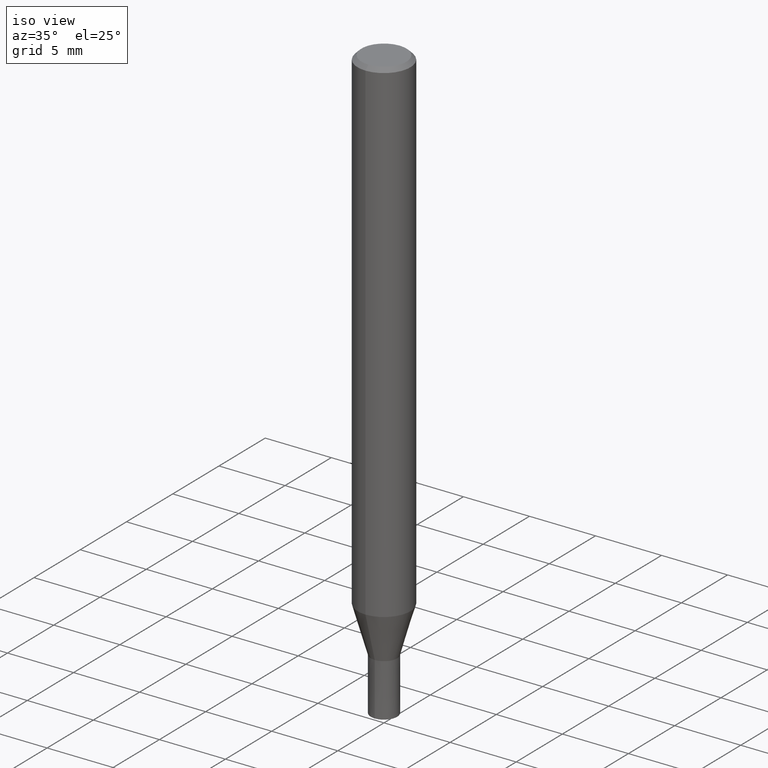
[diagram: clean part render]
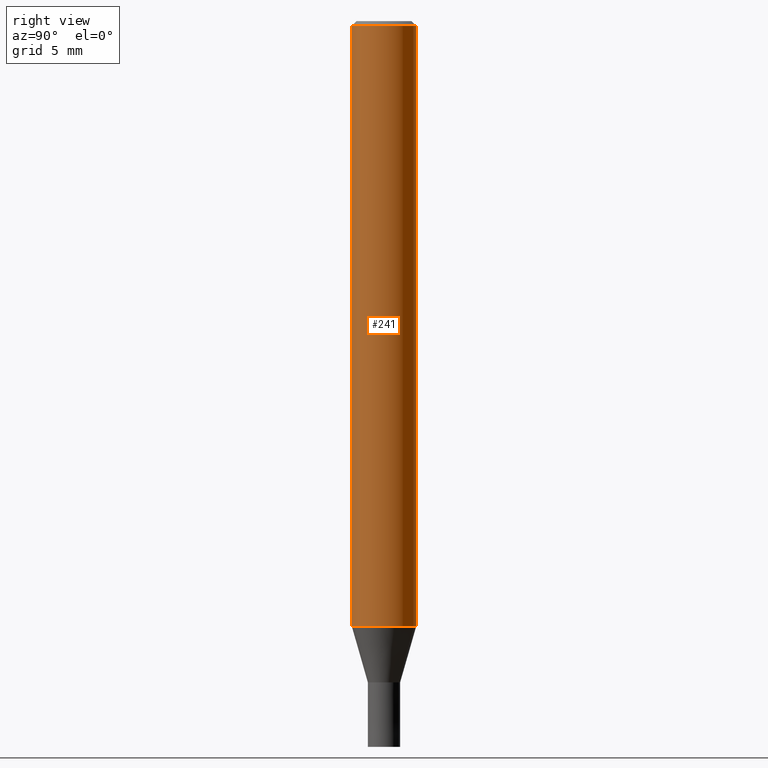
[diagram: tour spotlight — one face highlighted and labeled with its STEP entity id]
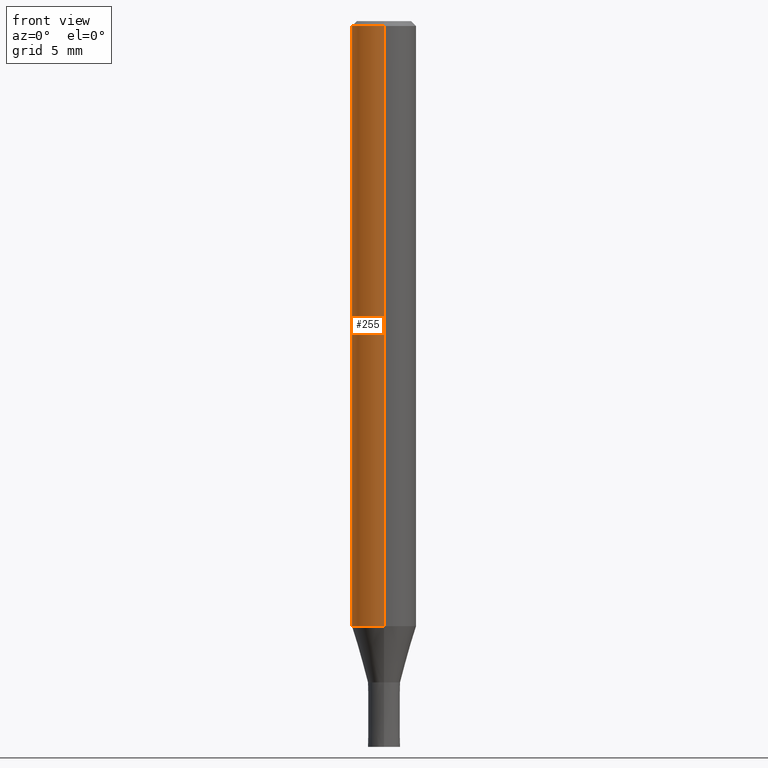
[diagram: tour spotlight — one face highlighted and labeled with its STEP entity id]
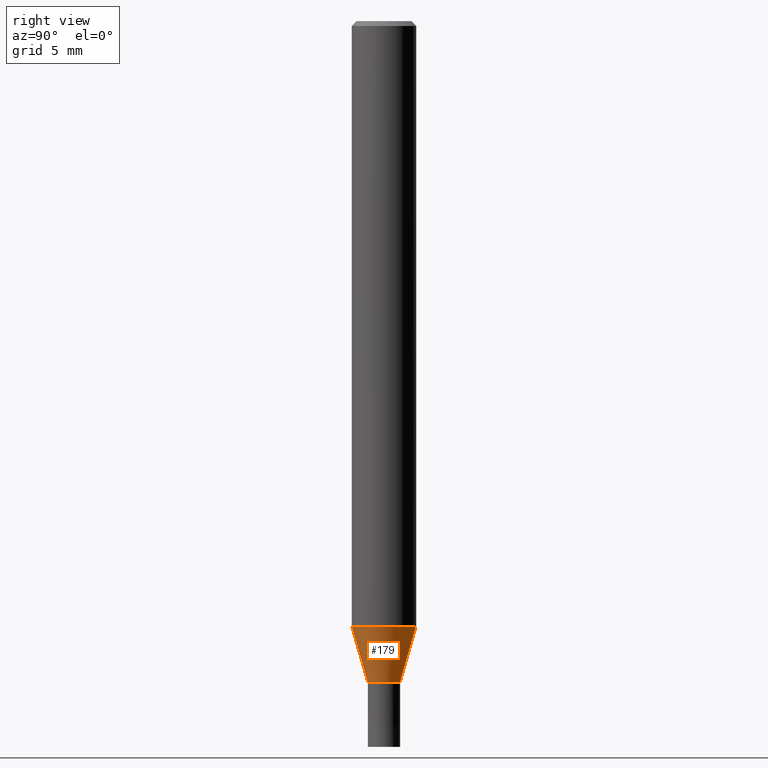
[diagram: tour spotlight — one face highlighted and labeled with its STEP entity id]
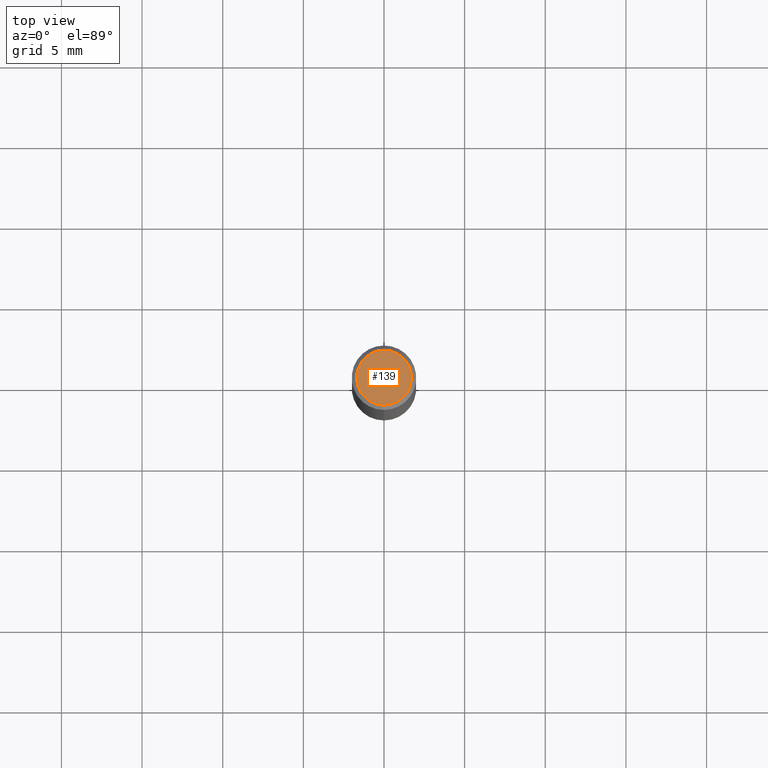
[diagram: tour spotlight — one face highlighted and labeled with its STEP entity id]
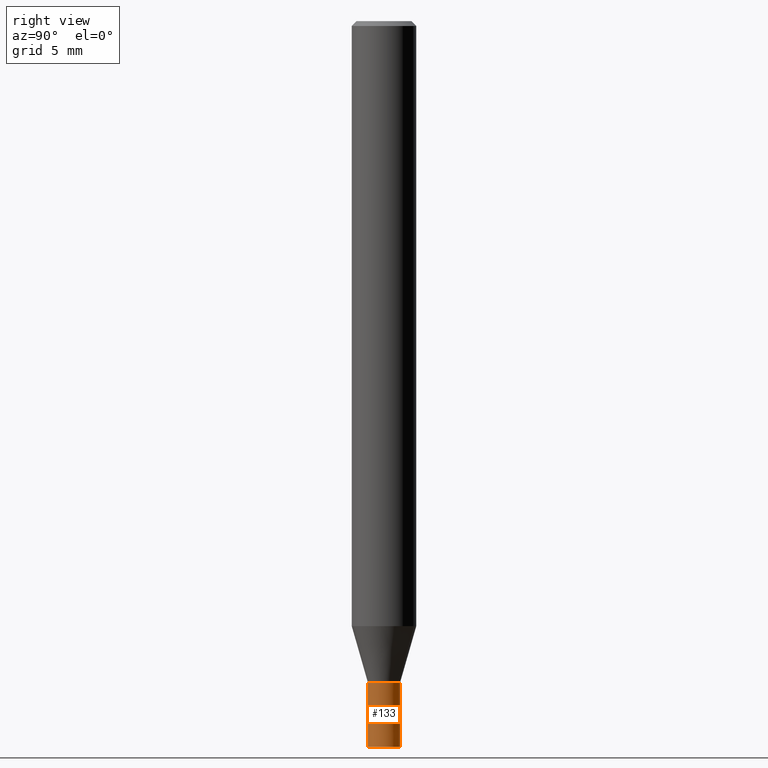
[diagram: tour spotlight — one face highlighted and labeled with its STEP entity id]
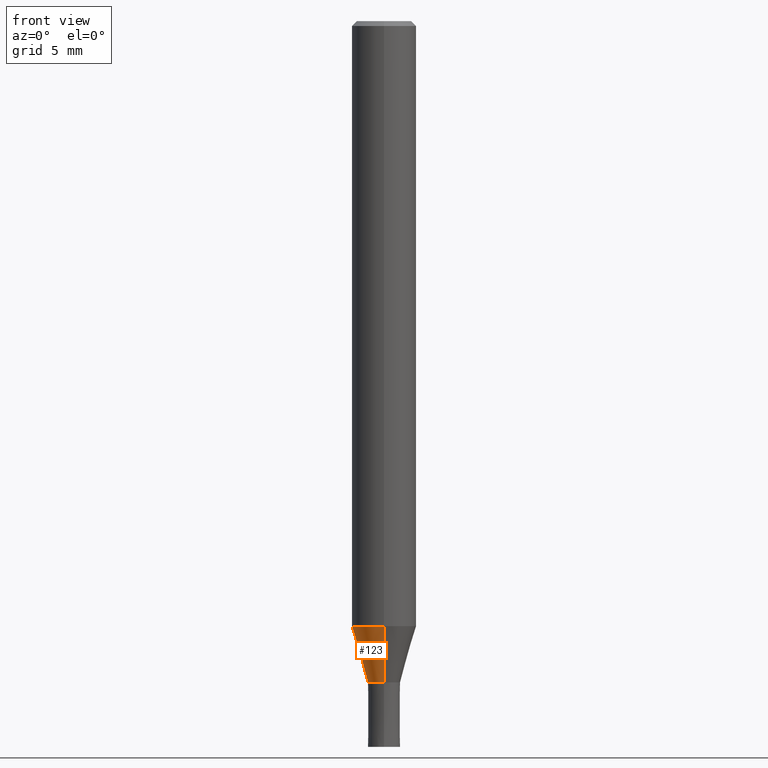
[diagram: tour spotlight — one face highlighted and labeled with its STEP entity id]
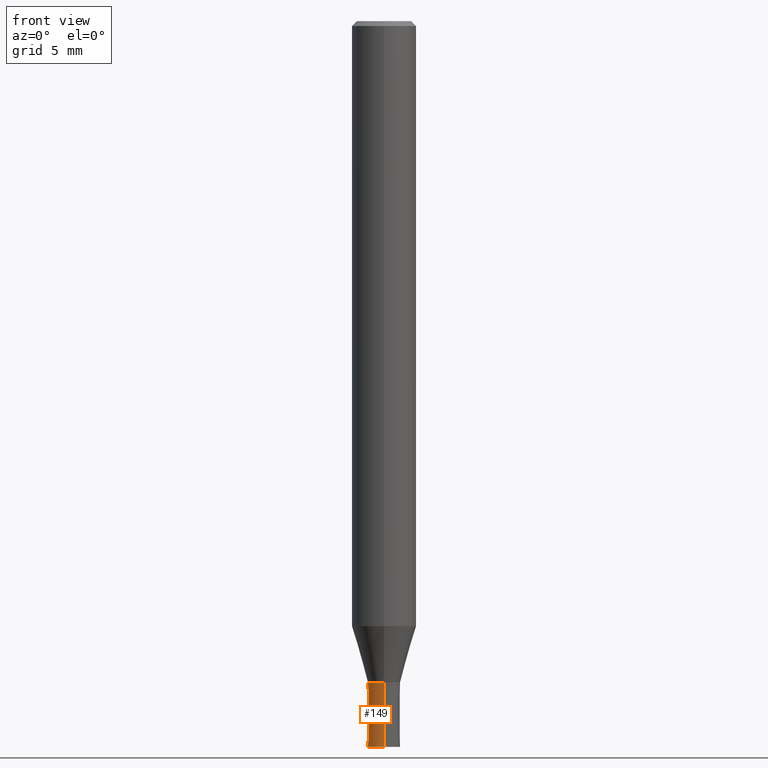
[diagram: tour spotlight — one face highlighted and labeled with its STEP entity id]
A machine part: a face-by-face anatomy tour. The part has 18 B-rep faces; the first image is the clean iso view, then the 7 largest visible faces are spotlighted one at a time (largest first), each with its STEP entity span.

Face 1 — right view, entity #241. In plain terms, the highlighted cylindrical surface (edge-blend (fillet) strip) has radius 2 mm, axis along (-0, -0, 1).
Definition (entity closure, byte-faithful):
#121=EDGE_CURVE('',#175,#165,#292,.T.);
#131=EDGE_CURVE('',#157,#159,#303,.T.);
#137=EDGE_CURVE('',#165,#159,#310,.T.);
#157=VERTEX_POINT('',#335);
#159=VERTEX_POINT('',#337);
#165=VERTEX_POINT('',#343);
#175=VERTEX_POINT('',#354);
#207=EDGE_CURVE('',#157,#175,#392,.T.);
#241=ADVANCED_FACE('',(#430),#431,.T.);
#292=CIRCLE('',#484,2.0);
#303=CIRCLE('',#497,2.0);
#310=LINE('',#505,#506);
#335=CARTESIAN_POINT('',(0.0,2.0,-0.299999999999997));
#337=CARTESIAN_POINT('',(2.44921270764475E-016,-2.0,-0.299999999999997));
#343=CARTESIAN_POINT('',(2.44921270764475E-016,-2.0,-37.513));
#354=CARTESIAN_POINT('',(0.0,2.0,-37.513));
#392=LINE('',#609,#610);
#430=FACE_OUTER_BOUND('',#655,.T.);
#431=CYLINDRICAL_SURFACE('',#656,2.0);
#484=AXIS2_PLACEMENT_3D('',#691,#692,#693);
#497=AXIS2_PLACEMENT_3D('',#705,#706,#707);
#505=CARTESIAN_POINT('',(2.44921270764475E-016,-2.0,-18.9065));
#506=VECTOR('',#716,1.0);
#609=CARTESIAN_POINT('',(-2.44921270764475E-016,2.0,-18.9065));
#610=VECTOR('',#823,1.0);
#655=EDGE_LOOP('',(#873,#874,#875,#876));
#656=AXIS2_PLACEMENT_3D('',#877,#878,#879);
#691=CARTESIAN_POINT('',(0.0,0.0,-37.513));
#692=DIRECTION('',(0.0,0.0,-1.0));
#693=DIRECTION('',(0.0,1.0,0.0));
#705=CARTESIAN_POINT('',(0.0,0.0,-0.299999999999997));
#706=DIRECTION('',(0.0,0.0,-1.0));
#707=DIRECTION('',(0.0,1.0,0.0));
#716=DIRECTION('',(-0.0,-0.0,1.0));
#823=DIRECTION('',(0.0,0.0,-1.0));
#873=ORIENTED_EDGE('',*,*,#207,.F.);
#874=ORIENTED_EDGE('',*,*,#131,.T.);
#875=ORIENTED_EDGE('',*,*,#137,.F.);
#876=ORIENTED_EDGE('',*,*,#121,.F.);
#877=CARTESIAN_POINT('',(0.0,0.0,-18.9065));
#878=DIRECTION('',(-0.0,-0.0,1.0));
#879=DIRECTION('',(0.0,1.0,0.0));

Face 2 — front view, entity #255. In plain terms, the highlighted cylindrical surface (edge-blend (fillet) strip) has radius 2 mm, axis along (-0, -0, 1).
Definition (entity closure, byte-faithful):
#119=EDGE_CURVE('',#165,#175,#290,.T.);
#137=EDGE_CURVE('',#165,#159,#310,.T.);
#157=VERTEX_POINT('',#335);
#159=VERTEX_POINT('',#337);
#165=VERTEX_POINT('',#343);
#175=VERTEX_POINT('',#354);
#207=EDGE_CURVE('',#157,#175,#392,.T.);
#233=EDGE_CURVE('',#159,#157,#422,.T.);
#255=ADVANCED_FACE('',(#447),#448,.T.);
#290=CIRCLE('',#481,2.0);
#310=LINE('',#505,#506);
#335=CARTESIAN_POINT('',(0.0,2.0,-0.299999999999997));
#337=CARTESIAN_POINT('',(2.44921270764475E-016,-2.0,-0.299999999999997));
#343=CARTESIAN_POINT('',(2.44921270764475E-016,-2.0,-37.513));
#354=CARTESIAN_POINT('',(0.0,2.0,-37.513));
#392=LINE('',#609,#610);
#422=CIRCLE('',#646,2.0);
#447=FACE_OUTER_BOUND('',#676,.T.);
#448=CYLINDRICAL_SURFACE('',#677,2.0);
#481=AXIS2_PLACEMENT_3D('',#688,#689,#690);
#505=CARTESIAN_POINT('',(2.44921270764475E-016,-2.0,-18.9065));
#506=VECTOR('',#716,1.0);
#609=CARTESIAN_POINT('',(-2.44921270764475E-016,2.0,-18.9065));
#610=VECTOR('',#823,1.0);
#646=AXIS2_PLACEMENT_3D('',#862,#863,#864);
#676=EDGE_LOOP('',(#896,#897,#898,#899));
#677=AXIS2_PLACEMENT_3D('',#900,#901,#902);
#688=CARTESIAN_POINT('',(0.0,0.0,-37.513));
#689=DIRECTION('',(0.0,0.0,-1.0));
#690=DIRECTION('',(0.0,1.0,0.0));
#716=DIRECTION('',(-0.0,-0.0,1.0));
#823=DIRECTION('',(0.0,0.0,-1.0));
#862=CARTESIAN_POINT('',(0.0,0.0,-0.299999999999997));
#863=DIRECTION('',(0.0,0.0,-1.0));
#864=DIRECTION('',(0.0,1.0,0.0));
#896=ORIENTED_EDGE('',*,*,#207,.T.);
#897=ORIENTED_EDGE('',*,*,#119,.F.);
#898=ORIENTED_EDGE('',*,*,#137,.T.);
#899=ORIENTED_EDGE('',*,*,#233,.T.);
#900=CARTESIAN_POINT('',(0.0,0.0,-18.9065));
#901=DIRECTION('',(-0.0,-0.0,1.0));
#902=DIRECTION('',(0.0,1.0,0.0));

Face 3 — right view, entity #179. In plain terms, the highlighted conical surface has half-angle 16.002 deg.
Definition (entity closure, byte-faithful):
#127=VERTEX_POINT('',#299);
#143=EDGE_CURVE('',#163,#161,#317,.T.);
#155=EDGE_CURVE('',#127,#161,#333,.T.);
#161=VERTEX_POINT('',#339);
#163=VERTEX_POINT('',#341);
#179=ADVANCED_FACE('',(#358),#359,.T.);
#199=EDGE_CURVE('',#127,#259,#383,.T.);
#243=EDGE_CURVE('',#259,#163,#433,.T.);
#259=VERTEX_POINT('',#452);
#299=CARTESIAN_POINT('',(0.0,1.99995,-37.513));
#317=LINE('',#515,#516);
#333=CIRCLE('',#534,1.99995);
#339=CARTESIAN_POINT('',(2.44915147732706E-016,-1.99995,-37.513));
#341=CARTESIAN_POINT('',(1.22454512350469E-016,-0.99995,-41.0));
#358=FACE_OUTER_BOUND('',#563,.T.);
#359=CONICAL_SURFACE('',#564,1.49995,0.279284171542493);
#383=LINE('',#595,#596);
#433=CIRCLE('',#659,0.99995);
#452=CARTESIAN_POINT('',(0.0,0.99995,-41.0));
#515=CARTESIAN_POINT('',(1.83684830041587E-016,-1.49995,-39.2565));
#516=VECTOR('',#726,1.0);
#534=AXIS2_PLACEMENT_3D('',#760,#761,#762);
#563=EDGE_LOOP('',(#779,#780,#781,#782));
#564=AXIS2_PLACEMENT_3D('',#783,#784,#785);
#595=CARTESIAN_POINT('',(-1.83684830041587E-016,1.49995,-39.2565));
#596=VECTOR('',#810,1.0);
#659=AXIS2_PLACEMENT_3D('',#880,#881,#882);
#726=DIRECTION('',(3.3758432755158E-017,-0.275667626987133,0.961253015304131));
#760=CARTESIAN_POINT('',(0.0,0.0,-37.513));
#761=DIRECTION('',(0.0,0.0,-1.0));
#762=DIRECTION('',(0.0,1.0,0.0));
#779=ORIENTED_EDGE('',*,*,#199,.F.);
#780=ORIENTED_EDGE('',*,*,#155,.T.);
#781=ORIENTED_EDGE('',*,*,#143,.F.);
#782=ORIENTED_EDGE('',*,*,#243,.F.);
#783=CARTESIAN_POINT('',(0.0,0.0,-39.2565));
#784=DIRECTION('',(-0.0,-0.0,1.0));
#785=DIRECTION('',(0.0,1.0,0.0));
#810=DIRECTION('',(3.3758432755158E-017,-0.275667626987133,-0.961253015304131));
#880=CARTESIAN_POINT('',(0.0,0.0,-41.0));
#881=DIRECTION('',(0.0,0.0,-1.0));
#882=DIRECTION('',(0.0,1.0,0.0));

Face 4 — top view, entity #139. In plain terms, the highlighted planar face has unit normal (-0, 0, 1).
Definition (entity closure, byte-faithful):
#139=ADVANCED_FACE('',(#312),#313,.T.);
#185=EDGE_CURVE('',#221,#247,#365,.T.);
#195=EDGE_CURVE('',#247,#221,#379,.T.);
#221=VERTEX_POINT('',#407);
#247=VERTEX_POINT('',#439);
#312=FACE_OUTER_BOUND('',#508,.T.);
#313=PLANE('',#509);
#365=CIRCLE('',#573,1.7);
#379=CIRCLE('',#588,1.7);
#407=CARTESIAN_POINT('',(0.0,1.7,0.0));
#439=CARTESIAN_POINT('',(2.08183080149804E-016,-1.7,0.0));
#508=EDGE_LOOP('',(#718,#719));
#509=AXIS2_PLACEMENT_3D('',#720,#721,#722);
#573=AXIS2_PLACEMENT_3D('',#787,#788,#789);
#588=AXIS2_PLACEMENT_3D('',#806,#807,#808);
#718=ORIENTED_EDGE('',*,*,#185,.F.);
#719=ORIENTED_EDGE('',*,*,#195,.F.);
#720=CARTESIAN_POINT('',(0.0,0.85,0.0));
#721=DIRECTION('',(-0.0,0.0,1.0));
#722=DIRECTION('',(0.0,-1.0,0.0));
#787=CARTESIAN_POINT('',(0.0,0.0,0.0));
#788=DIRECTION('',(0.0,0.0,-1.0));
#789=DIRECTION('',(0.0,1.0,0.0));
#806=CARTESIAN_POINT('',(0.0,0.0,0.0));
#807=DIRECTION('',(0.0,0.0,-1.0));
#808=DIRECTION('',(0.0,1.0,0.0));

Face 5 — right view, entity #133. In plain terms, the highlighted conical surface has half-angle 0.001 deg.
Definition (entity closure, byte-faithful):
#111=VERTEX_POINT('',#282);
#115=EDGE_CURVE('',#135,#111,#286,.T.);
#133=ADVANCED_FACE('',(#305),#306,.T.);
#135=VERTEX_POINT('',#308);
#171=EDGE_CURVE('',#189,#249,#350,.T.);
#189=VERTEX_POINT('',#371);
#203=EDGE_CURVE('',#189,#111,#388,.T.);
#217=EDGE_CURVE('',#249,#135,#403,.T.);
#249=VERTEX_POINT('',#441);
#282=CARTESIAN_POINT('',(1.224483893187E-016,-0.9999,-41.0));
#286=LINE('',#474,#475);
#305=FACE_OUTER_BOUND('',#499,.T.);
#306=CONICAL_SURFACE('',#500,0.99995,2.49999999947889E-005);
#308=CARTESIAN_POINT('',(1.22460635382238E-016,-1.0,-45.0));
#350=LINE('',#552,#553);
#371=CARTESIAN_POINT('',(0.0,0.9999,-41.0));
#388=CIRCLE('',#602,0.9999);
#403=CIRCLE('',#621,1.0);
#441=CARTESIAN_POINT('',(0.0,1.0,-45.0));
#474=CARTESIAN_POINT('',(1.22454512350469E-016,-0.99995,-43.0));
#475=VECTOR('',#684,1.0);
#499=EDGE_LOOP('',(#709,#710,#711,#712));
#500=AXIS2_PLACEMENT_3D('',#713,#714,#715);
#552=CARTESIAN_POINT('',(-1.22454512350469E-016,0.99995,-43.0));
#553=VECTOR('',#771,1.0);
#602=AXIS2_PLACEMENT_3D('',#819,#820,#821);
#621=AXIS2_PLACEMENT_3D('',#833,#834,#835);
#684=DIRECTION('',(-3.06151588359888E-021,2.49999999921847E-005,0.9999999996875));
#709=ORIENTED_EDGE('',*,*,#171,.F.);
#710=ORIENTED_EDGE('',*,*,#203,.T.);
#711=ORIENTED_EDGE('',*,*,#115,.F.);
#712=ORIENTED_EDGE('',*,*,#217,.F.);
#713=CARTESIAN_POINT('',(0.0,0.0,-43.0));
#714=DIRECTION('',(0.0,-0.0,-1.0));
#715=DIRECTION('',(0.0,1.0,0.0));
#771=DIRECTION('',(-3.06151588359888E-021,2.49999999921847E-005,-0.9999999996875));
#819=CARTESIAN_POINT('',(0.0,0.0,-41.0));
#820=DIRECTION('',(0.0,0.0,-1.0));
#821=DIRECTION('',(0.0,1.0,0.0));
#833=CARTESIAN_POINT('',(0.0,0.0,-45.0));
#834=DIRECTION('',(0.0,0.0,-1.0));
#835=DIRECTION('',(0.0,1.0,0.0));

Face 6 — front view, entity #123. In plain terms, the highlighted conical surface has half-angle 16.002 deg.
Definition (entity closure, byte-faithful):
#123=ADVANCED_FACE('',(#294),#295,.T.);
#127=VERTEX_POINT('',#299);
#129=EDGE_CURVE('',#161,#127,#301,.T.);
#143=EDGE_CURVE('',#163,#161,#317,.T.);
#161=VERTEX_POINT('',#339);
#163=VERTEX_POINT('',#341);
#199=EDGE_CURVE('',#127,#259,#383,.T.);
#219=EDGE_CURVE('',#163,#259,#405,.T.);
#259=VERTEX_POINT('',#452);
#294=FACE_OUTER_BOUND('',#486,.T.);
#295=CONICAL_SURFACE('',#487,1.49995,0.279284171542493);
#299=CARTESIAN_POINT('',(0.0,1.99995,-37.513));
#301=CIRCLE('',#494,1.99995);
#317=LINE('',#515,#516);
#339=CARTESIAN_POINT('',(2.44915147732706E-016,-1.99995,-37.513));
#341=CARTESIAN_POINT('',(1.22454512350469E-016,-0.99995,-41.0));
#383=LINE('',#595,#596);
#405=CIRCLE('',#624,0.99995);
#452=CARTESIAN_POINT('',(0.0,0.99995,-41.0));
#486=EDGE_LOOP('',(#695,#696,#697,#698));
#487=AXIS2_PLACEMENT_3D('',#699,#700,#701);
#494=AXIS2_PLACEMENT_3D('',#702,#703,#704);
#515=CARTESIAN_POINT('',(1.83684830041587E-016,-1.49995,-39.2565));
#516=VECTOR('',#726,1.0);
#595=CARTESIAN_POINT('',(-1.83684830041587E-016,1.49995,-39.2565));
#596=VECTOR('',#810,1.0);
#624=AXIS2_PLACEMENT_3D('',#836,#837,#838);
#695=ORIENTED_EDGE('',*,*,#199,.T.);
#696=ORIENTED_EDGE('',*,*,#219,.F.);
#697=ORIENTED_EDGE('',*,*,#143,.T.);
#698=ORIENTED_EDGE('',*,*,#129,.T.);
#699=CARTESIAN_POINT('',(0.0,0.0,-39.2565));
#700=DIRECTION('',(-0.0,-0.0,1.0));
#701=DIRECTION('',(0.0,1.0,0.0));
#702=CARTESIAN_POINT('',(0.0,0.0,-37.513));
#703=DIRECTION('',(0.0,0.0,-1.0));
#704=DIRECTION('',(0.0,1.0,0.0));
#726=DIRECTION('',(3.3758432755158E-017,-0.275667626987133,0.961253015304131));
#810=DIRECTION('',(3.3758432755158E-017,-0.275667626987133,-0.961253015304131));
#836=CARTESIAN_POINT('',(0.0,0.0,-41.0));
#837=DIRECTION('',(0.0,0.0,-1.0));
#838=DIRECTION('',(0.0,1.0,0.0));

Face 7 — front view, entity #149. In plain terms, the highlighted conical surface has half-angle 0.001 deg.
Definition (entity closure, byte-faithful):
#111=VERTEX_POINT('',#282);
#115=EDGE_CURVE('',#135,#111,#286,.T.);
#135=VERTEX_POINT('',#308);
#147=EDGE_CURVE('',#135,#249,#322,.T.);
#149=ADVANCED_FACE('',(#324),#325,.T.);
#171=EDGE_CURVE('',#189,#249,#350,.T.);
#189=VERTEX_POINT('',#371);
#235=EDGE_CURVE('',#111,#189,#424,.T.);
#249=VERTEX_POINT('',#441);
#282=CARTESIAN_POINT('',(1.224483893187E-016,-0.9999,-41.0));
#286=LINE('',#474,#475);
#308=CARTESIAN_POINT('',(1.22460635382238E-016,-1.0,-45.0));
#322=CIRCLE('',#522,1.0);
#324=FACE_OUTER_BOUND('',#524,.T.);
#325=CONICAL_SURFACE('',#525,0.99995,2.49999999947889E-005);
#350=LINE('',#552,#553);
#371=CARTESIAN_POINT('',(0.0,0.9999,-41.0));
#424=CIRCLE('',#649,0.9999);
#441=CARTESIAN_POINT('',(0.0,1.0,-45.0));
#474=CARTESIAN_POINT('',(1.22454512350469E-016,-0.99995,-43.0));
#475=VECTOR('',#684,1.0);
#522=AXIS2_PLACEMENT_3D('',#735,#736,#737);
#524=EDGE_LOOP('',(#739,#740,#741,#742));
#525=AXIS2_PLACEMENT_3D('',#743,#744,#745);
#552=CARTESIAN_POINT('',(-1.22454512350469E-016,0.99995,-43.0));
#553=VECTOR('',#771,1.0);
#649=AXIS2_PLACEMENT_3D('',#865,#866,#867);
#684=DIRECTION('',(-3.06151588359888E-021,2.49999999921847E-005,0.9999999996875));
#735=CARTESIAN_POINT('',(0.0,0.0,-45.0));
#736=DIRECTION('',(0.0,0.0,-1.0));
#737=DIRECTION('',(0.0,1.0,0.0));
#739=ORIENTED_EDGE('',*,*,#171,.T.);
#740=ORIENTED_EDGE('',*,*,#147,.F.);
#741=ORIENTED_EDGE('',*,*,#115,.T.);
#742=ORIENTED_EDGE('',*,*,#235,.T.);
#743=CARTESIAN_POINT('',(0.0,0.0,-43.0));
#744=DIRECTION('',(0.0,-0.0,-1.0));
#745=DIRECTION('',(0.0,1.0,0.0));
#771=DIRECTION('',(-3.06151588359888E-021,2.49999999921847E-005,-0.9999999996875));
#865=CARTESIAN_POINT('',(0.0,0.0,-41.0));
#866=DIRECTION('',(0.0,0.0,-1.0));
#867=DIRECTION('',(0.0,1.0,0.0));